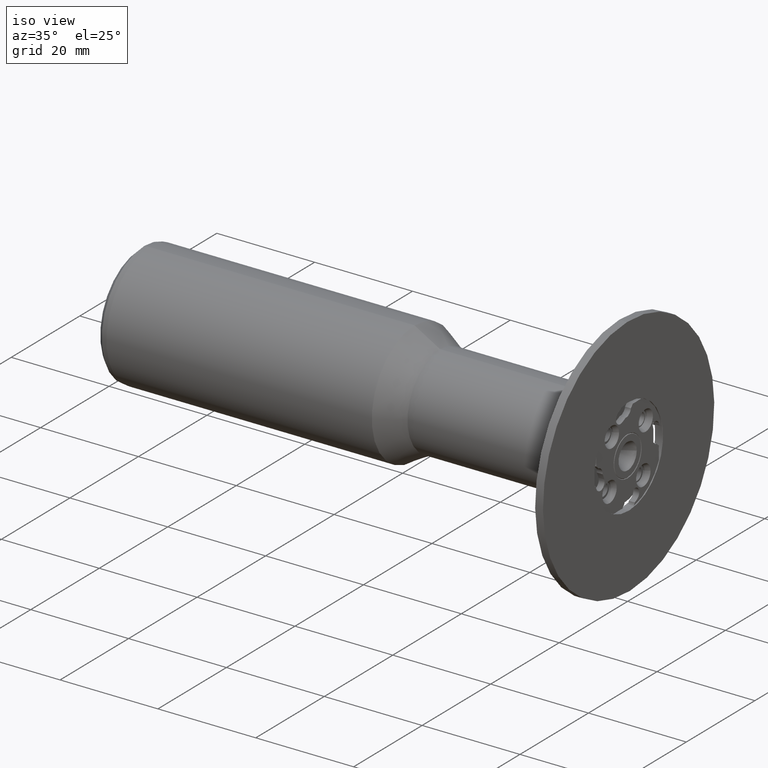
[diagram: clean part render]
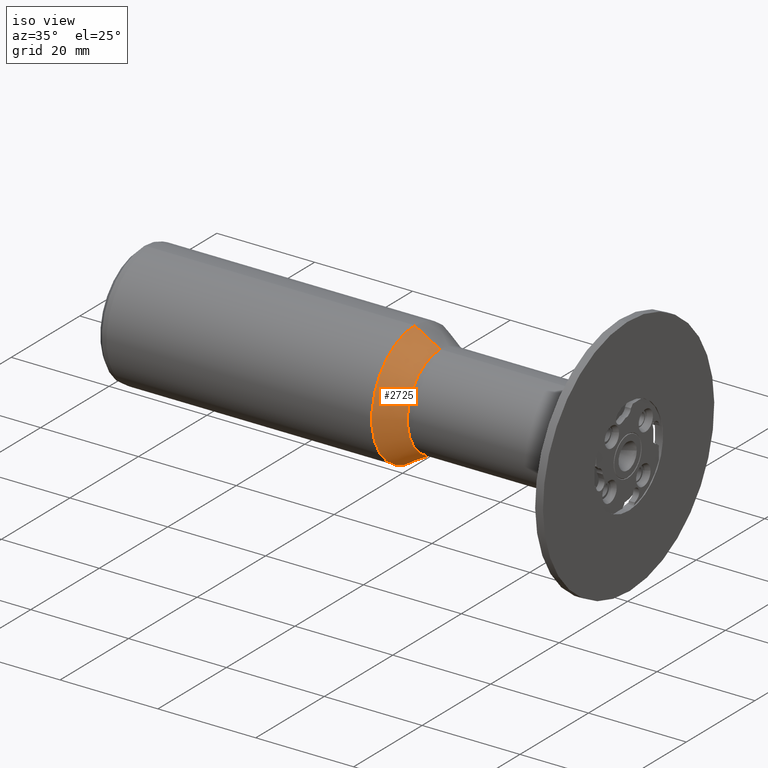
[diagram: same view with one face highlighted and labeled with its STEP entity id]
A machine part, iso view. The second image highlights one B-rep face of the part: STEP entity #2725.
In plain terms, the highlighted conical surface has half-angle 30 deg.
Its self-contained STEP definition (entity closure, byte-faithful):
#3 = DIRECTION ( 'NONE',  ( 0.0000000000000000000, 0.0000000000000000000, 1.000000000000000000 ) ) ;
#78 = ORIENTED_EDGE ( 'NONE', *, *, #458, .T. ) ;
#82 = VERTEX_POINT ( 'NONE', #3790 ) ;
#329 = VECTOR ( 'NONE', #1403, 999.9999999999998863 ) ;
#371 = CARTESIAN_POINT ( 'NONE',  ( -38.34398861615805032, 0.0000000000000000000, 9.499999999999994671 ) ) ;
#427 = CARTESIAN_POINT ( 'NONE',  ( -38.34398861615805032, 1.163414459189984894E-15, -9.499999999999994671 ) ) ;
#429 = EDGE_CURVE ( 'NONE', #3347, #82, #2483, .T. ) ;
#458 = EDGE_CURVE ( 'NONE', #2788, #4067, #1211, .T. ) ;
#905 = DIRECTION ( 'NONE',  ( 1.000000000000000000, -0.0000000000000000000, -0.0000000000000000000 ) ) ;
#950 = CARTESIAN_POINT ( 'NONE',  ( -38.34398861615805032, 1.347111479062088207E-15, -9.499999999999994671 ) ) ;
#958 = EDGE_LOOP ( 'NONE', ( #2748, #2577, #78, #1026 ) ) ;
#1026 = ORIENTED_EDGE ( 'NONE', *, *, #1197, .T. ) ;
#1055 = EDGE_CURVE ( 'NONE', #2788, #3347, #2261, .T. ) ;
#1082 = FACE_OUTER_BOUND ( 'NONE', #958, .T. ) ;
#1197 = EDGE_CURVE ( 'NONE', #4067, #82, #3822, .T. ) ;
#1211 = LINE ( 'NONE', #3335, #329 ) ;
#1259 = DIRECTION ( 'NONE',  ( 1.000000000000000000, -0.0000000000000000000, -0.0000000000000000000 ) ) ;
#1403 = DIRECTION ( 'NONE',  ( -0.8660254037844380415, 0.0000000000000000000, 0.5000000000000012212 ) ) ;
#1644 = AXIS2_PLACEMENT_3D ( 'NONE', #1907, #1259, #3 ) ;
#1825 = CARTESIAN_POINT ( 'NONE',  ( -43.54014103886468234, 0.0000000000000000000, 12.50000000000000178 ) ) ;
#1907 = CARTESIAN_POINT ( 'NONE',  ( -43.54014103886468234, 0.0000000000000000000, 0.0000000000000000000 ) ) ;
#2020 = VECTOR ( 'NONE', #2357, 999.9999999999998863 ) ;
#2160 = AXIS2_PLACEMENT_3D ( 'NONE', #2173, #905, #3186 ) ;
#2173 = CARTESIAN_POINT ( 'NONE',  ( -38.34398861615805032, 0.0000000000000000000, 0.0000000000000000000 ) ) ;
#2261 = CIRCLE ( 'NONE', #2160, 9.499999999999994671 ) ;
#2357 = DIRECTION ( 'NONE',  ( -0.8660254037844380415, 6.123233995736782060E-17, -0.5000000000000012212 ) ) ;
#2483 = LINE ( 'NONE', #427, #2020 ) ;
#2577 = ORIENTED_EDGE ( 'NONE', *, *, #1055, .F. ) ;
#2666 = CONICAL_SURFACE ( 'NONE', #4042, 9.499999999999994671, 0.5235987755983002589 ) ;
#2669 = DIRECTION ( 'NONE',  ( -1.000000000000000000, 0.0000000000000000000, 0.0000000000000000000 ) ) ;
#2725 = ADVANCED_FACE ( 'NONE', ( #1082 ), #2666, .T. ) ;
#2748 = ORIENTED_EDGE ( 'NONE', *, *, #429, .F. ) ;
#2788 = VERTEX_POINT ( 'NONE', #371 ) ;
#3013 = CARTESIAN_POINT ( 'NONE',  ( -38.34398861615805032, 0.0000000000000000000, 0.0000000000000000000 ) ) ;
#3186 = DIRECTION ( 'NONE',  ( 0.0000000000000000000, 0.0000000000000000000, -1.000000000000000000 ) ) ;
#3335 = CARTESIAN_POINT ( 'NONE',  ( -38.34398861615805032, 0.0000000000000000000, 9.499999999999994671 ) ) ;
#3347 = VERTEX_POINT ( 'NONE', #950 ) ;
#3640 = DIRECTION ( 'NONE',  ( 0.0000000000000000000, 0.0000000000000000000, 1.000000000000000000 ) ) ;
#3790 = CARTESIAN_POINT ( 'NONE',  ( -43.54014103886468234, 1.530808498934191916E-15, -12.50000000000000178 ) ) ;
#3822 = CIRCLE ( 'NONE', #1644, 12.50000000000000000 ) ;
#4042 = AXIS2_PLACEMENT_3D ( 'NONE', #3013, #2669, #3640 ) ;
#4067 = VERTEX_POINT ( 'NONE', #1825 ) ;